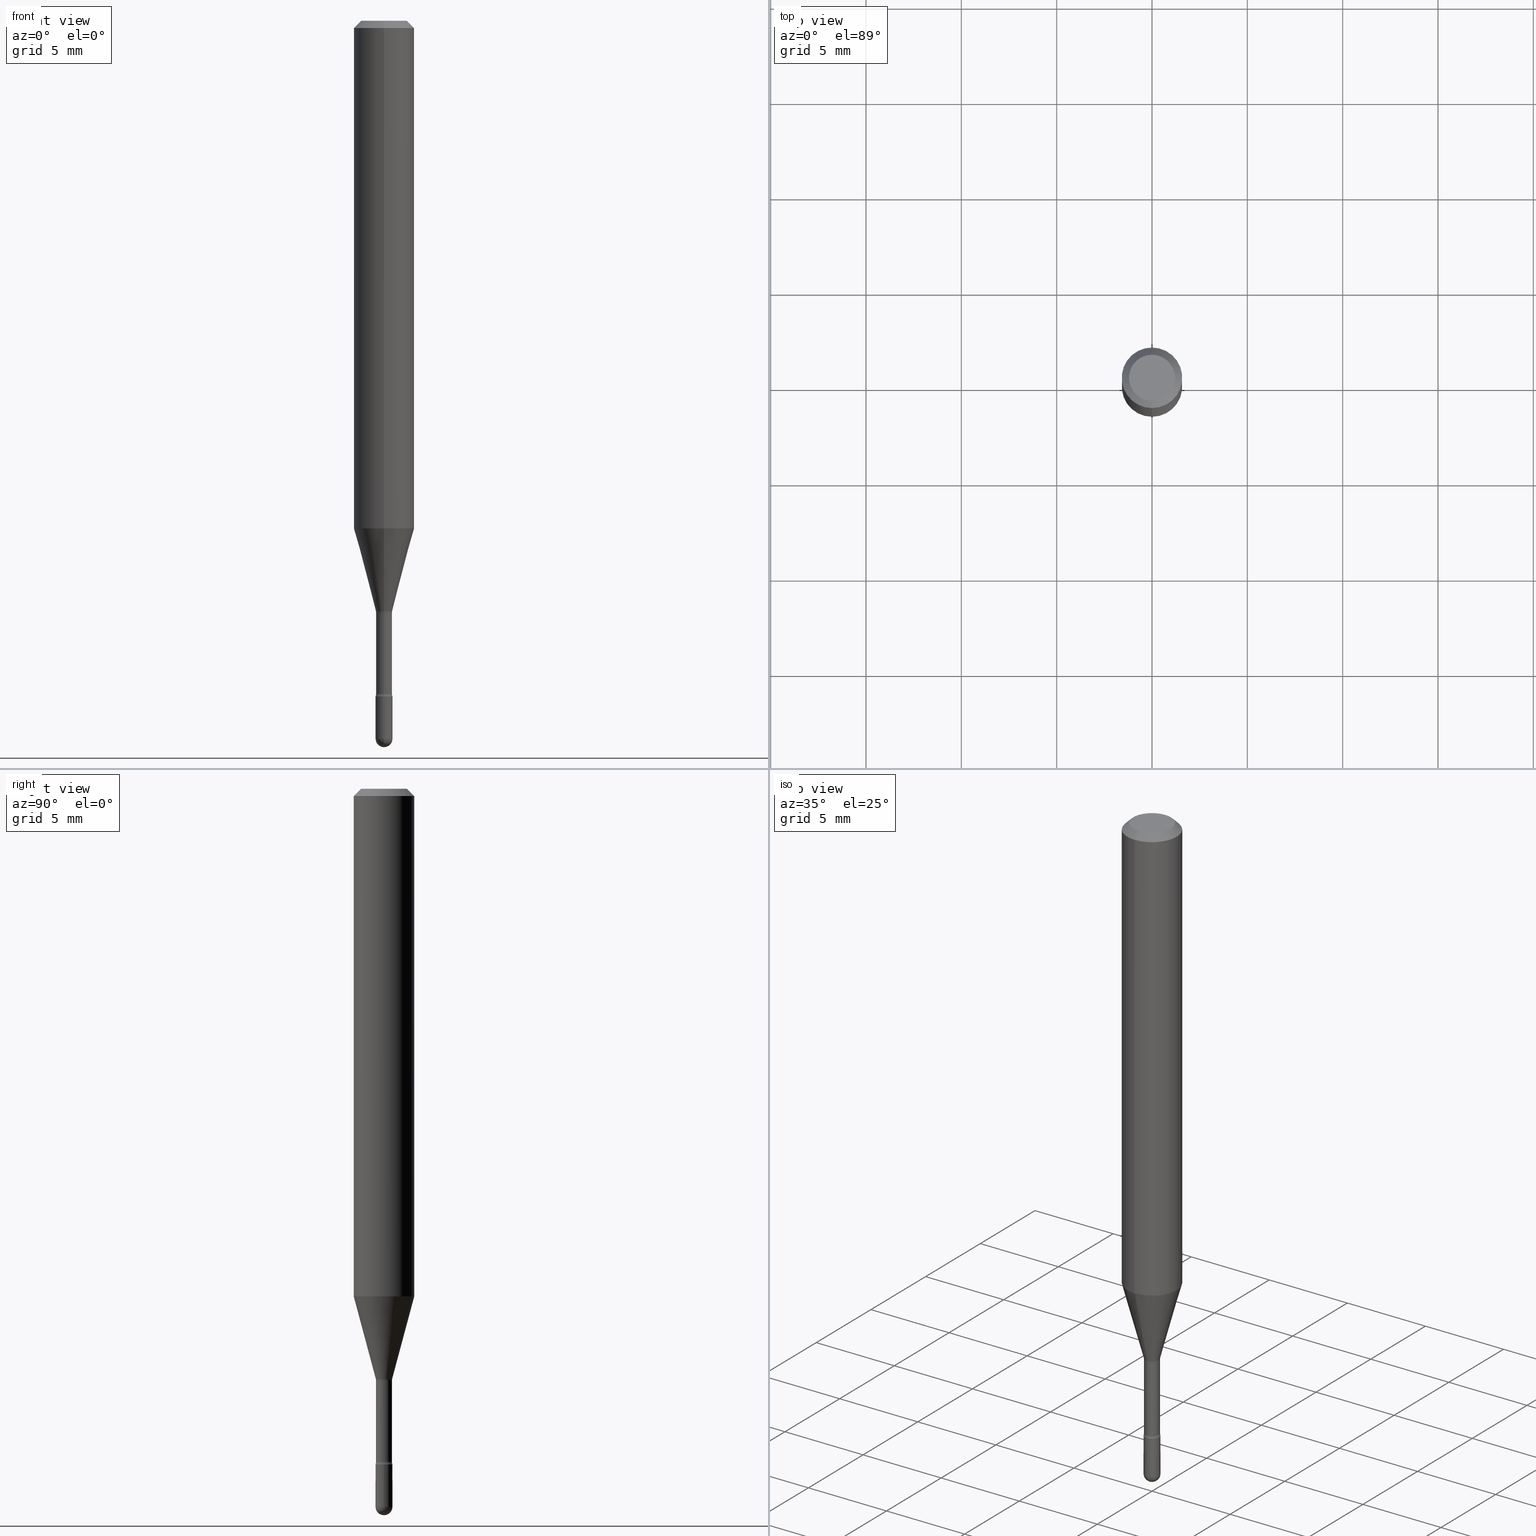
[diagram: canonical four-view strip — front | top / right | iso, engineering-drawing reading convention]
A machine part, canonical four-view strip (front | top / right | iso — engineering-drawing reading convention). The complete STEP part file that produces these views, byte-faithful:
ISO-10303-21;
HEADER;
FILE_DESCRIPTION (( 'STEP AP203' ),
    '1' );
FILE_NAME ('03757.STEP',
    '2024-04-09T20:21:34',
    ( '' ),
    ( '' ),
    'SwSTEP 2.0',
    'SolidWorks 2023',
    '' );
FILE_SCHEMA (( 'CONFIG_CONTROL_DESIGN' ));
ENDSEC;

DATA;
#1 = ORIENTED_EDGE ( 'NONE', *, *, #41, .T. ) ;
#2 = APPLICATION_CONTEXT ( 'configuration controlled 3d designs of mechanical parts and assemblies' ) ;
#3 = ORIENTED_EDGE ( 'NONE', *, *, #524, .F. ) ;
#4 = ORIENTED_EDGE ( 'NONE', *, *, #390, .T. ) ;
#5 = VERTEX_POINT ( 'NONE', #275 ) ;
#6 = DIRECTION ( 'NONE',  ( -6.982962677686265922E-15, -1.000000000000000000, 3.491500473345853689E-15 ) ) ;
#7 = TOROIDAL_SURFACE ( 'NONE', #496, 0.03145000000000001267, 0.01499999999999995261 ) ;
#8 = ORIENTED_EDGE ( 'NONE', *, *, #70, .T. ) ;
#9 = ORIENTED_EDGE ( 'NONE', *, *, #205, .F. ) ;
#10 = DIRECTION ( 'NONE',  ( -2.438088387897960049E-29, 3.491481338843145188E-15, 1.000000000000000000 ) ) ;
#11 = CARTESIAN_POINT ( 'NONE',  ( 2.563177371771484502E-29, -3.659578025209718433E-15, -1.048139060311453319 ) ) ;
#12 = VERTEX_POINT ( 'NONE', #246 ) ;
#13 = ORIENTED_EDGE ( 'NONE', *, *, #536, .F. ) ;
#14 = APPROVAL_STATUS ( 'not_yet_approved' ) ;
#15 = CLOSED_SHELL ( 'NONE', ( #419, #177, #558, #69, #85 ) ) ;
#16 = CARTESIAN_POINT ( 'NONE',  ( -2.196141762132031595E-16, -0.03145000000000426621, -1.221974787463810941 ) ) ;
#17 = CC_DESIGN_SECURITY_CLASSIFICATION ( #193, ( #79 ) ) ;
#18 = EDGE_LOOP ( 'NONE', ( #395, #197 ) ) ;
#19 = COORDINATED_UNIVERSAL_TIME_OFFSET ( 5, 0, .BEHIND. ) ;
#20 = FACE_OUTER_BOUND ( 'NONE', #141, .T. ) ;
#21 = ORIENTED_EDGE ( 'NONE', *, *, #38, .T. ) ;
#22 = CARTESIAN_POINT ( 'NONE',  ( 3.625407505169465251E-29, -5.176121084834963974E-15, -1.482500000000000151 ) ) ;
#23 = DIRECTION ( 'NONE',  ( 1.839019923739595977E-15, 0.2588190451025243477, 0.9659258262890673130 ) ) ;
#24 = CC_DESIGN_PERSON_AND_ORGANIZATION_ASSIGNMENT ( #198, #321, ( #79 ) ) ;
#25 = AXIS2_PLACEMENT_3D ( 'NONE', #16, #330, #540 ) ;
#26 = DIRECTION ( 'NONE',  ( -2.445455444633309356E-29, 3.491500473345854084E-15, 1.000000000000000000 ) ) ;
#27 =( GEOMETRIC_REPRESENTATION_CONTEXT ( 3 ) GLOBAL_UNCERTAINTY_ASSIGNED_CONTEXT ( ( #440 ) ) GLOBAL_UNIT_ASSIGNED_CONTEXT ( ( #460, #235, #157 ) ) REPRESENTATION_CONTEXT ( 'NONE', 'WORKASPACE' ) );
#28 = PERSON_AND_ORGANIZATION_ROLE ( 'design_supplier' ) ;
#29 = CARTESIAN_POINT ( 'NONE',  ( 3.316907271900976096E-16, 0.04749999999999999362, 3.181736537036162079E-17 ) ) ;
#30 = DIRECTION ( 'NONE',  ( 4.937700262164548042E-15, 0.7071067811865451302, -0.7071067811865499042 ) ) ;
#31 = DIRECTION ( 'NONE',  ( -1.807323732225325801E-15, -0.2588190451025175753, 0.9659258262890690894 ) ) ;
#32 = CARTESIAN_POINT ( 'NONE',  ( -0.01750000000000000167, -4.899023797502559247E-15, -1.395000000000000018 ) ) ;
#33 = PRODUCT_RELATED_PRODUCT_CATEGORY ( 'detail', '', ( #80 ) ) ;
#34 = CARTESIAN_POINT ( 'NONE',  ( 3.411410345263466685E-29, -4.870643160317466837E-15, -1.395000000000000018 ) ) ;
#35 = CARTESIAN_POINT ( 'NONE',  ( 3.668183166949984529E-31, -5.237250710018810412E-17, -0.01500000000000008271 ) ) ;
#36 = AXIS2_PLACEMENT_3D ( 'NONE', #322, #461, #194 ) ;
#37 = CARTESIAN_POINT ( 'NONE',  ( 2.823025816868771357E-16, 0.01696111260565972764, -1.218092501787273241 ) ) ;
#38 = EDGE_CURVE ( 'NONE', #455, #156, #281, .T. ) ;
#39 = LINE ( 'NONE', #515, #350 ) ;
#40 = ORIENTED_EDGE ( 'NONE', *, *, #412, .F. ) ;
#41 = EDGE_CURVE ( 'NONE', #50, #443, #234, .T. ) ;
#42 = CIRCLE ( 'NONE', #25, 0.01499999999999999424 ) ;
#43 = APPROVAL_PERSON_ORGANIZATION ( #279, #216, #240 ) ;
#44 = VERTEX_POINT ( 'NONE', #159 ) ;
#45 = AXIS2_PLACEMENT_3D ( 'NONE', #134, #315, #48 ) ;
#46 = CYLINDRICAL_SURFACE ( 'NONE', #227, 0.06250000000000000000 ) ;
#47 = ORIENTED_EDGE ( 'NONE', *, *, #128, .T. ) ;
#48 = DIRECTION ( 'NONE',  ( -6.982962677686266711E-15, -1.000000000000000000, 0.000000000000000000 ) ) ;
#49 = ORIENTED_EDGE ( 'NONE', *, *, #274, .T. ) ;
#50 = VERTEX_POINT ( 'NONE', #289 ) ;
#51 = FACE_OUTER_BOUND ( 'NONE', #147, .T. ) ;
#52 = VECTOR ( 'NONE', #23, 39.37007874015748143 ) ;
#53 = AXIS2_PLACEMENT_3D ( 'NONE', #503, #301, #167 ) ;
#54 = EDGE_CURVE ( 'NONE', #156, #499, #299, .T. ) ;
#55 = EDGE_LOOP ( 'NONE', ( #384, #410, #176, #238 ) ) ;
#56 = FACE_OUTER_BOUND ( 'NONE', #346, .T. ) ;
#57 = DIRECTION ( 'NONE',  ( -6.982962677686265922E-15, -1.000000000000000000, 0.000000000000000000 ) ) ;
#58 = EDGE_CURVE ( 'NONE', #497, #519, #454, .T. ) ;
#59 = CARTESIAN_POINT ( 'NONE',  ( 1.205159535236658201E-16, 0.01696111260565972417, -1.218092501787273241 ) ) ;
#60 = DATE_AND_TIME ( #449, #433 ) ;
#61 = DIRECTION ( 'NONE',  ( -6.982962677686266711E-15, -1.000000000000000000, 3.491500473345853689E-15 ) ) ;
#62 = VERTEX_POINT ( 'NONE', #509 ) ;
#63 = APPROVAL_STATUS ( 'not_yet_approved' ) ;
#64 = CONICAL_SURFACE ( 'NONE', #88, 0.06250000000000000000, 0.7853981633974483900 ) ;
#65 = CARTESIAN_POINT ( 'NONE',  ( -1.184388162973558367E-16, -0.01696111260566823126, -1.218092501787273241 ) ) ;
#66 = AXIS2_PLACEMENT_3D ( 'NONE', #97, #348, #142 ) ;
#67 = ORIENTED_EDGE ( 'NONE', *, *, #308, .F. ) ;
#68 = EDGE_CURVE ( 'NONE', #156, #306, #359, .T. ) ;
#69 = ADVANCED_FACE ( 'NONE', ( #76 ), #462, .T. ) ;
#70 = EDGE_CURVE ( 'NONE', #499, #182, #213, .T. ) ;
#71 = CALENDAR_DATE ( 2024, 9, 4 ) ;
#72 = CARTESIAN_POINT ( 'NONE',  ( 4.440892098500880569E-16, 0.06249999999999632933, -1.048139060311453763 ) ) ;
#73 = ORIENTED_EDGE ( 'NONE', *, *, #420, .T. ) ;
#74 = LENGTH_MEASURE_WITH_UNIT ( LENGTH_MEASURE( 0.02539999999999999897 ), #482 );
#75 = DIRECTION ( 'NONE',  ( -6.982962677686266711E-15, -1.000000000000000000, 0.000000000000000000 ) ) ;
#76 = FACE_OUTER_BOUND ( 'NONE', #545, .T. ) ;
#77 = PERSON_AND_ORGANIZATION ( #525, #423 ) ;
#78 = DIRECTION ( 'NONE',  ( 7.105427357600997914E-15, 1.000000000000000000, 0.000000000000000000 ) ) ;
#79 = PRODUCT_DEFINITION_FORMATION_WITH_SPECIFIED_SOURCE ( 'ANY', '', #80, .NOT_KNOWN. ) ;
#80 = PRODUCT ( '03757', '03757', '', ( #332 ) ) ;
#81 = CARTESIAN_POINT ( 'NONE',  ( -1.184388162973558367E-16, -0.01696111260566823126, -1.218092501787273241 ) ) ;
#82 = DIRECTION ( 'NONE',  ( -1.000000000000000000, 7.105427357601001070E-15, -4.926315508542082329E-29 ) ) ;
#83 = CARTESIAN_POINT ( 'NONE',  ( -4.287811248607203282E-16, -0.06250000000000005551, -0.01499999999999986587 ) ) ;
#84 = CARTESIAN_POINT ( 'NONE',  ( 2.023455696568545272E-45, -2.889172759565612818E-31, -8.274612318266673942E-17 ) ) ;
#85 = ADVANCED_FACE ( 'NONE', ( #123 ), #334, .T. ) ;
#86 = ADVANCED_FACE ( 'NONE', ( #501 ), #253, .F. ) ;
#87 = CARTESIAN_POINT ( 'NONE',  ( 3.668951479780737210E-29, -5.236150442315465727E-15, -1.500000000000000222 ) ) ;
#88 = AXIS2_PLACEMENT_3D ( 'NONE', #151, #233, #325 ) ;
#89 = DIRECTION ( 'NONE',  ( -2.445455444633309637E-29, 3.491500473345854084E-15, 1.000000000000000000 ) ) ;
#90 = ORIENTED_EDGE ( 'NONE', *, *, #536, .T. ) ;
#91 = FACE_OUTER_BOUND ( 'NONE', #397, .T. ) ;
#92 = EDGE_CURVE ( 'NONE', #429, #44, #272, .T. ) ;
#93 = AXIS2_PLACEMENT_3D ( 'NONE', #421, #215, #428 ) ;
#94 = VECTOR ( 'NONE', #475, 39.37007874015748143 ) ;
#95 = CC_DESIGN_PERSON_AND_ORGANIZATION_ASSIGNMENT ( #201, #413, ( #80 ) ) ;
#96 = VERTEX_POINT ( 'NONE', #342 ) ;
#97 = CARTESIAN_POINT ( 'NONE',  ( 3.625407505169465251E-29, -5.176121084834963974E-15, -1.482500000000000151 ) ) ;
#98 = CIRCLE ( 'NONE', #191, 0.01696111260566397771 ) ;
#99 = EDGE_CURVE ( 'NONE', #12, #447, #556, .T. ) ;
#100 = ORIENTED_EDGE ( 'NONE', *, *, #412, .T. ) ;
#101 = SECURITY_CLASSIFICATION_LEVEL ( 'unclassified' ) ;
#102 = ORIENTED_EDGE ( 'NONE', *, *, #99, .T. ) ;
#103 = DATE_TIME_ROLE ( 'classification_date' ) ;
#104 = EDGE_CURVE ( 'NONE', #519, #497, #307, .T. ) ;
#105 = EDGE_LOOP ( 'NONE', ( #368, #228, #184, #521, #100 ) ) ;
#106 = COORDINATED_UNIVERSAL_TIME_OFFSET ( 5, 0, .BEHIND. ) ;
#107 = AXIS2_PLACEMENT_3D ( 'NONE', #210, #258, #431 ) ;
#108 = FACE_OUTER_BOUND ( 'NONE', #364, .T. ) ;
#109 = VECTOR ( 'NONE', #31, 39.37007874015748854 ) ;
#110 = ORIENTED_EDGE ( 'NONE', *, *, #269, .T. ) ;
#111 = APPLICATION_PROTOCOL_DEFINITION ( 'international standard', 'config_control_design', 1994, #377 ) ;
#112 = DIRECTION ( 'NONE',  ( -2.445455444633309637E-29, 3.491500473345854084E-15, 1.000000000000000000 ) ) ;
#113 = CARTESIAN_POINT ( 'NONE',  ( 2.023455696568545272E-45, -2.889172759565612818E-31, -8.274612318266673942E-17 ) ) ;
#114 = APPROVAL_STATUS ( 'not_yet_approved' ) ;
#115 = DIRECTION ( 'NONE',  ( -6.982962677686261977E-15, -1.000000000000000000, 0.000000000000000000 ) ) ;
#116 = DIRECTION ( 'NONE',  ( -6.982962677686266711E-15, -1.000000000000000000, 3.491500473345854478E-15 ) ) ;
#117 = CARTESIAN_POINT ( 'NONE',  ( 0.01749999999999999820, -5.145570623120085689E-15, -1.482500000000000151 ) ) ;
#118 = EDGE_CURVE ( 'NONE', #519, #499, #425, .T. ) ;
#119 = TOROIDAL_SURFACE ( 'NONE', #36, 0.03144999999999999879, 0.01499999999999998904 ) ;
#120 = DIRECTION ( 'NONE',  ( -2.445468806185136597E-29, 3.491481338843145583E-15, 1.000000000000000000 ) ) ;
#121 = APPROVAL ( #114, 'UNSPECIFIED' ) ;
#122 = DIRECTION ( 'NONE',  ( -2.445455444633309637E-29, 3.491500473345854084E-15, 1.000000000000000000 ) ) ;
#123 = FACE_OUTER_BOUND ( 'NONE', #352, .T. ) ;
#124 = DIRECTION ( 'NONE',  ( -2.445468806185136597E-29, 3.491481338843145583E-15, 1.000000000000000000 ) ) ;
#125 = CARTESIAN_POINT ( 'NONE',  ( 3.625407505169465251E-29, -5.176121084834963974E-15, -1.482500000000000151 ) ) ;
#126 = EDGE_CURVE ( 'NONE', #443, #62, #163, .T. ) ;
#127 = FACE_OUTER_BOUND ( 'NONE', #105, .T. ) ;
#128 = EDGE_CURVE ( 'NONE', #326, #12, #532, .T. ) ;
#129 = AXIS2_PLACEMENT_3D ( 'NONE', #84, #292, #204 ) ;
#130 = AXIS2_PLACEMENT_3D ( 'NONE', #339, #379, #550 ) ;
#131 = DIRECTION ( 'NONE',  ( -2.445468806185136597E-29, 3.491481338843145583E-15, 1.000000000000000000 ) ) ;
#132 = ORIENTED_EDGE ( 'NONE', *, *, #128, .F. ) ;
#133 = ORIENTED_EDGE ( 'NONE', *, *, #453, .F. ) ;
#134 = CARTESIAN_POINT ( 'NONE',  ( 3.397927588859361801E-29, -4.851393146799434675E-15, -1.389486607215153491 ) ) ;
#135 = AXIS2_PLACEMENT_3D ( 'NONE', #285, #202, #458 ) ;
#136 = LOCAL_TIME ( 16, 21, 34.00000000000000000, #328 ) ;
#137 = ORIENTED_EDGE ( 'NONE', *, *, #367, .T. ) ;
#138 = CARTESIAN_POINT ( 'NONE',  ( -1.169113584055446105E-44, 1.669184350826100908E-30, 4.780733988912460139E-16 ) ) ;
#139 = ORIENTED_EDGE ( 'NONE', *, *, #367, .F. ) ;
#140 = DIRECTION ( 'NONE',  ( -6.982962677686265922E-15, -1.000000000000000000, 3.491500473345853689E-15 ) ) ;
#141 = EDGE_LOOP ( 'NONE', ( #139, #320, #490, #271 ) ) ;
#142 = DIRECTION ( 'NONE',  ( 6.982962677686265922E-15, 1.000000000000000000, 0.000000000000000000 ) ) ;
#143 = VERTEX_POINT ( 'NONE', #32 ) ;
#144 = AXIS2_PLACEMENT_3D ( 'NONE', #549, #380, #382 ) ;
#145 = CIRCLE ( 'NONE', #546, 0.01499999999999995608 ) ;
#146 = CARTESIAN_POINT ( 'NONE',  ( -1.222018468594753717E-16, -0.01750000000000484848, -1.395000000000000018 ) ) ;
#147 = EDGE_LOOP ( 'NONE', ( #222, #355 ) ) ;
#148 = FACE_OUTER_BOUND ( 'NONE', #516, .T. ) ;
#149 = ORIENTED_EDGE ( 'NONE', *, *, #553, .F. ) ;
#150 = DATE_AND_TIME ( #362, #136 ) ;
#151 = CARTESIAN_POINT ( 'NONE',  ( 3.668183166949984529E-31, -5.237250710018810412E-17, -0.01500000000000008271 ) ) ;
#152 = ORIENTED_EDGE ( 'NONE', *, *, #99, .F. ) ;
#153 = COORDINATED_UNIVERSAL_TIME_OFFSET ( 5, 0, .BEHIND. ) ;
#154 = AXIS2_PLACEMENT_3D ( 'NONE', #498, #112, #75 ) ;
#155 = CARTESIAN_POINT ( 'NONE',  ( -4.364351673553912750E-16, -0.06250000000000005551, -0.01499999999999986587 ) ) ;
#156 = VERTEX_POINT ( 'NONE', #72 ) ;
#157 =( NAMED_UNIT ( * ) SI_UNIT ( $, .STERADIAN. ) SOLID_ANGLE_UNIT ( ) );
#158 = DIRECTION ( 'NONE',  ( -1.000000000000000000, 6.982962677686265922E-15, -4.883557194083112340E-29 ) ) ;
#159 = CARTESIAN_POINT ( 'NONE',  ( -0.01749999999999999820, -4.899023797502559247E-15, -1.482500000000000151 ) ) ;
#160 = LINE ( 'NONE', #81, #109 ) ;
#161 = DIRECTION ( 'NONE',  ( -2.445455444633309637E-29, 3.491500473345854084E-15, 1.000000000000000000 ) ) ;
#162 = FACE_OUTER_BOUND ( 'NONE', #243, .T. ) ;
#163 = CIRCLE ( 'NONE', #564, 0.01644999999999999934 ) ;
#164 = VECTOR ( 'NONE', #341, 39.37007874015748143 ) ;
#165 = DIRECTION ( 'NONE',  ( -6.982962677686266711E-15, -1.000000000000000000, 0.000000000000000000 ) ) ;
#166 = SHAPE_DEFINITION_REPRESENTATION ( #552, #175 ) ;
#167 = DIRECTION ( 'NONE',  ( 1.000000000000000000, -6.982962677686265922E-15, 4.876176775795936353E-29 ) ) ;
#168 = ADVANCED_FACE ( 'NONE', ( #548 ), #7, .F. ) ;
#169 = EDGE_CURVE ( 'NONE', #224, #455, #98, .T. ) ;
#170 = DIRECTION ( 'NONE',  ( 1.000000000000000000, -6.982962677686250144E-15, 0.000000000000000000 ) ) ;
#171 = DIRECTION ( 'NONE',  ( 1.000000000000000000, -6.982962677686250144E-15, 0.000000000000000000 ) ) ;
#172 = CARTESIAN_POINT ( 'NONE',  ( -1.169113584055446105E-44, 1.669184350826100908E-30, 4.780733988912460139E-16 ) ) ;
#173 = AXIS2_PLACEMENT_3D ( 'NONE', #280, #242, #418 ) ;
#174 = LOCAL_TIME ( 16, 21, 34.00000000000000000, #539 ) ;
#175 = ADVANCED_BREP_SHAPE_REPRESENTATION ( '03757', ( #562, #192, #484 ), #27 ) ;
#176 = ORIENTED_EDGE ( 'NONE', *, *, #488, .T. ) ;
#177 = ADVANCED_FACE ( 'NONE', ( #148 ), #277, .T. ) ;
#178 = CYLINDRICAL_SURFACE ( 'NONE', #262, 0.06250000000000000000 ) ;
#179 = DIRECTION ( 'NONE',  ( -6.982962677686266711E-15, -1.000000000000000000, 0.000000000000000000 ) ) ;
#180 = AXIS2_PLACEMENT_3D ( 'NONE', #469, #82, #256 ) ;
#181 = LOCAL_TIME ( 16, 21, 34.00000000000000000, #19 ) ;
#182 = VERTEX_POINT ( 'NONE', #155 ) ;
#183 = DIRECTION ( 'NONE',  ( -2.445455444633309637E-29, 3.491500473345854084E-15, 1.000000000000000000 ) ) ;
#184 = ORIENTED_EDGE ( 'NONE', *, *, #186, .F. ) ;
#185 = DIRECTION ( 'NONE',  ( -2.445455444633309637E-29, 3.491500473345854084E-15, 1.000000000000000000 ) ) ;
#186 = EDGE_CURVE ( 'NONE', #96, #143, #294, .T. ) ;
#187 = ORIENTED_EDGE ( 'NONE', *, *, #54, .T. ) ;
#188 = DIRECTION ( 'NONE',  ( -2.445455444633309637E-29, 3.491500473345854084E-15, 1.000000000000000000 ) ) ;
#189 = ORIENTED_EDGE ( 'NONE', *, *, #479, .F. ) ;
#190 = ORIENTED_EDGE ( 'NONE', *, *, #518, .F. ) ;
#191 = AXIS2_PLACEMENT_3D ( 'NONE', #416, #450, #487 ) ;
#192 = MANIFOLD_SOLID_BREP ( 'Body-Move/Copy2[2]', #302 ) ;
#193 = SECURITY_CLASSIFICATION ( '', '', #101 ) ;
#194 = DIRECTION ( 'NONE',  ( -6.982962677686265133E-15, -1.000000000000000000, 3.491500473345853689E-15 ) ) ;
#195 = ORIENTED_EDGE ( 'NONE', *, *, #388, .T. ) ;
#196 = CARTESIAN_POINT ( 'NONE',  ( 3.397946154556677144E-29, -4.851366559664184684E-15, -1.389486607215153491 ) ) ;
#197 = ORIENTED_EDGE ( 'NONE', *, *, #390, .F. ) ;
#198 = PERSON_AND_ORGANIZATION ( #525, #423 ) ;
#199 = ADVANCED_FACE ( 'NONE', ( #20 ), #119, .F. ) ;
#200 = ORIENTED_EDGE ( 'NONE', *, *, #441, .T. ) ;
#201 = PERSON_AND_ORGANIZATION ( #525, #423 ) ;
#202 = DIRECTION ( 'NONE',  ( 2.445455444633309637E-29, -3.491500473345854084E-15, -1.000000000000000000 ) ) ;
#203 = CIRCLE ( 'NONE', #351, 0.01645000000000006180 ) ;
#204 = DIRECTION ( 'NONE',  ( -6.982962677686266711E-15, -1.000000000000000000, 3.491500473345854478E-15 ) ) ;
#205 = EDGE_CURVE ( 'NONE', #224, #62, #42, .T. ) ;
#206 = LINE ( 'NONE', #83, #164 ) ;
#207 = ADVANCED_FACE ( 'NONE', ( #363 ), #64, .T. ) ;
#208 = CARTESIAN_POINT ( 'NONE',  ( 2.988284897208007501E-29, -4.266525548846594975E-15, -1.221974787463810941 ) ) ;
#209 = FACE_OUTER_BOUND ( 'NONE', #526, .T. ) ;
#210 = CARTESIAN_POINT ( 'NONE',  ( 3.625407505169465251E-29, -5.176121084834963974E-15, -1.482500000000000151 ) ) ;
#211 = ADVANCED_FACE ( 'NONE', ( #537 ), #466, .T. ) ;
#212 = CARTESIAN_POINT ( 'NONE',  ( 2.234656903965813287E-16, 0.03144999999999573137, -1.221974787463811163 ) ) ;
#213 = CIRCLE ( 'NONE', #445, 0.06250000000000000000 ) ;
#214 = CC_DESIGN_APPROVAL ( #121, ( #79 ) ) ;
#215 = DIRECTION ( 'NONE',  ( -2.445455444633309637E-29, 3.491500473345854084E-15, 1.000000000000000000 ) ) ;
#216 = APPROVAL ( #63, 'UNSPECIFIED' ) ;
#217 = PLANE ( 'NONE',  #317 ) ;
#218 = CARTESIAN_POINT ( 'NONE',  ( 1.222018468595459501E-16, 0.01749999999999482872, -1.482500000000000151 ) ) ;
#219 = EDGE_CURVE ( 'NONE', #44, #143, #248, .T. ) ;
#220 = EDGE_LOOP ( 'NONE', ( #394, #231, #448, #478 ) ) ;
#221 = AXIS2_PLACEMENT_3D ( 'NONE', #196, #495, #404 ) ;
#222 = ORIENTED_EDGE ( 'NONE', *, *, #186, .T. ) ;
#223 = AXIS2_PLACEMENT_3D ( 'NONE', #464, #435, #171 ) ;
#224 = VERTEX_POINT ( 'NONE', #65 ) ;
#225 = DIRECTION ( 'NONE',  ( -2.445455444633309637E-29, 3.491500473345854084E-15, 1.000000000000000000 ) ) ;
#226 = AXIS2_PLACEMENT_3D ( 'NONE', #371, #366, #543 ) ;
#227 = AXIS2_PLACEMENT_3D ( 'NONE', #442, #225, #140 ) ;
#228 = ORIENTED_EDGE ( 'NONE', *, *, #219, .T. ) ;
#229 = ADVANCED_FACE ( 'NONE', ( #492 ), #422, .F. ) ;
#230 = CARTESIAN_POINT ( 'NONE',  ( 3.411428984628265351E-29, -4.870616467686188228E-15, -1.395000000000000018 ) ) ;
#231 = ORIENTED_EDGE ( 'NONE', *, *, #68, .T. ) ;
#232 = CARTESIAN_POINT ( 'NONE',  ( 2.978790940562696599E-29, -4.252970546569299993E-15, -1.218092501787273241 ) ) ;
#233 = DIRECTION ( 'NONE',  ( 2.445455444633309637E-29, -3.491500473345854084E-15, -1.000000000000000000 ) ) ;
#234 = LINE ( 'NONE', #336, #373 ) ;
#235 =( NAMED_UNIT ( * ) PLANE_ANGLE_UNIT ( ) SI_UNIT ( $, .RADIAN. ) );
#236 = DIRECTION ( 'NONE',  ( -1.000000000000000000, 6.982962677686265922E-15, -4.883557194083112340E-29 ) ) ;
#237 = CC_DESIGN_DATE_AND_TIME_ASSIGNMENT ( #60, #103, ( #193 ) ) ;
#238 = ORIENTED_EDGE ( 'NONE', *, *, #68, .F. ) ;
#239 = AXIS2_PLACEMENT_3D ( 'NONE', #551, #504, #170 ) ;
#240 = APPROVAL_ROLE ( '' ) ;
#241 = AXIS2_PLACEMENT_3D ( 'NONE', #212, #386, #78 ) ;
#242 = DIRECTION ( 'NONE',  ( -2.445455444633309637E-29, 3.491500473345854084E-15, 1.000000000000000000 ) ) ;
#243 = EDGE_LOOP ( 'NONE', ( #90, #1, #189, #133 ) ) ;
#244 = APPROVAL_DATE_TIME ( #283, #216 ) ;
#245 = DIRECTION ( 'NONE',  ( -2.445455444633309637E-29, 3.491500473345854084E-15, 1.000000000000000000 ) ) ;
#246 = CARTESIAN_POINT ( 'NONE',  ( -1.243449787579813061E-16, -0.01750000000000517808, -1.482500000000000151 ) ) ;
#247 = DIRECTION ( 'NONE',  ( 0.000000000000000000, 0.000000000000000000, 1.000000000000000000 ) ) ;
#248 = LINE ( 'NONE', #291, #327 ) ;
#249 = DIRECTION ( 'NONE',  ( -2.445455444633309637E-29, 3.491500473345854084E-15, 1.000000000000000000 ) ) ;
#250 = PERSON_AND_ORGANIZATION ( #525, #423 ) ;
#251 = CARTESIAN_POINT ( 'NONE',  ( 1.168842800325705942E-16, 0.01644999999999573539, -1.221974787463810941 ) ) ;
#252 = AXIS2_PLACEMENT_3D ( 'NONE', #398, #183, #353 ) ;
#253 = PLANE ( 'NONE',  #513 ) ;
#254 = DIRECTION ( 'NONE',  ( -6.982962677686266711E-15, -1.000000000000000000, 3.491500473345854873E-15 ) ) ;
#255 = ADVANCED_FACE ( 'NONE', ( #414 ), #483, .F. ) ;
#256 = DIRECTION ( 'NONE',  ( -7.105427357601001859E-15, -1.000000000000000000, 0.000000000000000000 ) ) ;
#257 = DIRECTION ( 'NONE',  ( -6.982962677686265922E-15, -1.000000000000000000, 0.000000000000000000 ) ) ;
#258 = DIRECTION ( 'NONE',  ( -1.000000000000000000, 6.982962677686265922E-15, -4.883557194083112340E-29 ) ) ;
#259 = CC_DESIGN_PERSON_AND_ORGANIZATION_ASSIGNMENT ( #276, #357, ( #193 ) ) ;
#260 = FACE_OUTER_BOUND ( 'NONE', #436, .T. ) ;
#261 = AXIS2_PLACEMENT_3D ( 'NONE', #22, #236, #408 ) ;
#262 = AXIS2_PLACEMENT_3D ( 'NONE', #138, #185, #6 ) ;
#263 = DIRECTION ( 'NONE',  ( -2.445455444633309637E-29, 3.491500473345854084E-15, 1.000000000000000000 ) ) ;
#264 = ADVANCED_FACE ( 'NONE', ( #108 ), #383, .T. ) ;
#265 = ORIENTED_EDGE ( 'NONE', *, *, #118, .T. ) ;
#266 = DIRECTION ( 'NONE',  ( -2.445455444633309637E-29, 3.491500473345854084E-15, 1.000000000000000000 ) ) ;
#267 = AXIS2_PLACEMENT_3D ( 'NONE', #333, #500, #57 ) ;
#268 = CONICAL_SURFACE ( 'NONE', #303, 0.01696111260566397771, 0.2617993877991496299 ) ;
#269 = EDGE_CURVE ( 'NONE', #5, #305, #437, .T. ) ;
#270 = CARTESIAN_POINT ( 'NONE',  ( 3.397927588859361801E-29, -4.851393146799434675E-15, -1.389486607215153491 ) ) ;
#271 = ORIENTED_EDGE ( 'NONE', *, *, #479, .T. ) ;
#272 = CIRCLE ( 'NONE', #239, 0.01749999999999999820 ) ;
#273 = CIRCLE ( 'NONE', #309, 0.06250000000000000000 ) ;
#274 = EDGE_CURVE ( 'NONE', #305, #530, #505, .T. ) ;
#275 = CARTESIAN_POINT ( 'NONE',  ( -1.148697360479055251E-16, -0.01645000000000491208, -1.389486607215153491 ) ) ;
#276 = PERSON_AND_ORGANIZATION ( #525, #423 ) ;
#277 = SPHERICAL_SURFACE ( 'NONE', #261, 0.01750000000000000860 ) ;
#278 = ORIENTED_EDGE ( 'NONE', *, *, #472, .T. ) ;
#279 = PERSON_AND_ORGANIZATION ( #525, #423 ) ;
#280 = CARTESIAN_POINT ( 'NONE',  ( 2.988301224687461483E-29, -4.266502166966715248E-15, -1.221974787463810941 ) ) ;
#281 = LINE ( 'NONE', #59, #52 ) ;
#282 = AXIS2_PLACEMENT_3D ( 'NONE', #11, #188, #358 ) ;
#283 = DATE_AND_TIME ( #71, #181 ) ;
#284 = CIRCLE ( 'NONE', #241, 0.01499999999999999424 ) ;
#285 = CARTESIAN_POINT ( 'NONE',  ( 3.668183166949984529E-31, -5.237250710018810412E-17, -0.01500000000000008271 ) ) ;
#286 = ORIENTED_EDGE ( 'NONE', *, *, #287, .F. ) ;
#287 = EDGE_CURVE ( 'NONE', #306, #156, #522, .T. ) ;
#288 = DIRECTION ( 'NONE',  ( -2.445468806185136877E-29, 3.491481338843145188E-15, 1.000000000000000000 ) ) ;
#289 = CARTESIAN_POINT ( 'NONE',  ( 1.206146293953111284E-16, 0.01644999999999521151, -1.389486607215153491 ) ) ;
#290 = CALENDAR_DATE ( 2024, 9, 4 ) ;
#291 = CARTESIAN_POINT ( 'NONE',  ( -0.01750000000000000167, 1.243449787580175444E-16, -8.608136407946085539E-31 ) ) ;
#292 = DIRECTION ( 'NONE',  ( -2.445455444633309637E-29, 3.491500473345854084E-15, 1.000000000000000000 ) ) ;
#293 = AXIS2_PLACEMENT_3D ( 'NONE', #376, #158, #115 ) ;
#294 = CIRCLE ( 'NONE', #226, 0.01750000000000000167 ) ;
#295 = CARTESIAN_POINT ( 'NONE',  ( 0.01750000000000000167, -1.222018468595096625E-16, 8.533309357642889039E-31 ) ) ;
#296 = CIRCLE ( 'NONE', #66, 0.01750000000000000860 ) ;
#297 = CARTESIAN_POINT ( 'NONE',  ( 4.364351673553919652E-16, 0.06249999999999995143, -0.01500000000000030129 ) ) ;
#298 = LINE ( 'NONE', #295, #94 ) ;
#299 = LINE ( 'NONE', #507, #476 ) ;
#300 = CYLINDRICAL_SURFACE ( 'NONE', #53, 0.01750000000000000167 ) ;
#301 = DIRECTION ( 'NONE',  ( -2.445468806185136597E-29, 3.491481338843145583E-15, 1.000000000000000000 ) ) ;
#302 = CLOSED_SHELL ( 'NONE', ( #229, #356, #168, #264, #517, #510, #211, #512, #207, #426, #86, #255, #541, #199 ) ) ;
#303 = AXIS2_PLACEMENT_3D ( 'NONE', #506, #122, #304 ) ;
#304 = DIRECTION ( 'NONE',  ( -6.982962677686266711E-15, -1.000000000000000000, 0.000000000000000000 ) ) ;
#305 = VERTEX_POINT ( 'NONE', #146 ) ;
#306 = VERTEX_POINT ( 'NONE', #319 ) ;
#307 = CIRCLE ( 'NONE', #338, 0.04749999999999999362 ) ;
#308 = EDGE_CURVE ( 'NONE', #306, #182, #39, .T. ) ;
#309 = AXIS2_PLACEMENT_3D ( 'NONE', #345, #563, #427 ) ;
#310 = ORIENTED_EDGE ( 'NONE', *, *, #314, .F. ) ;
#311 = EDGE_CURVE ( 'NONE', #143, #96, #544, .T. ) ;
#312 = ORIENTED_EDGE ( 'NONE', *, *, #126, .T. ) ;
#313 = ORIENTED_EDGE ( 'NONE', *, *, #453, .T. ) ;
#314 = EDGE_CURVE ( 'NONE', #44, #12, #474, .T. ) ;
#315 = DIRECTION ( 'NONE',  ( -2.445455444633309637E-29, 3.491500473345854084E-15, 1.000000000000000000 ) ) ;
#316 = ORIENTED_EDGE ( 'NONE', *, *, #104, .T. ) ;
#317 = AXIS2_PLACEMENT_3D ( 'NONE', #29, #554, #343 ) ;
#318 = CALENDAR_DATE ( 2024, 9, 4 ) ;
#319 = CARTESIAN_POINT ( 'NONE',  ( -4.364351673553661300E-16, -0.06250000000000367761, -1.048139060311453097 ) ) ;
#320 = ORIENTED_EDGE ( 'NONE', *, *, #169, .F. ) ;
#321 = PERSON_AND_ORGANIZATION_ROLE ( 'creator' ) ;
#322 = CARTESIAN_POINT ( 'NONE',  ( 2.988301224687461483E-29, -4.266502166966715248E-15, -1.221974787463810941 ) ) ;
#323 = EDGE_LOOP ( 'NONE', ( #528, #538, #265, #8 ) ) ;
#324 = DATE_AND_TIME ( #290, #174 ) ;
#325 = DIRECTION ( 'NONE',  ( 6.982962677686265922E-15, 1.000000000000000000, -3.483106191921935554E-15 ) ) ;
#326 = VERTEX_POINT ( 'NONE', #87 ) ;
#327 = VECTOR ( 'NONE', #288, 39.37007874015748143 ) ;
#328 = COORDINATED_UNIVERSAL_TIME_OFFSET ( 5, 0, .BEHIND. ) ;
#329 = AXIS2_PLACEMENT_3D ( 'NONE', #230, #10, #402 ) ;
#330 = DIRECTION ( 'NONE',  ( -1.000000000000000000, 6.982962677686265922E-15, -4.883557194083112340E-29 ) ) ;
#331 = ORIENTED_EDGE ( 'NONE', *, *, #488, .F. ) ;
#332 = MECHANICAL_CONTEXT ( 'NONE', #377, 'mechanical' ) ;
#333 = CARTESIAN_POINT ( 'NONE',  ( 3.411410345263466685E-29, -4.870643160317466837E-15, -1.395000000000000018 ) ) ;
#334 = CYLINDRICAL_SURFACE ( 'NONE', #144, 0.01750000000000000167 ) ;
#335 = CARTESIAN_POINT ( 'NONE',  ( 3.625407505169465251E-29, -5.176121084834963974E-15, -1.482500000000000151 ) ) ;
#336 = CARTESIAN_POINT ( 'NONE',  ( 1.168842800325366731E-16, 0.01645000000000003057, 4.206382161047066551E-16 ) ) ;
#337 = CC_DESIGN_DATE_AND_TIME_ASSIGNMENT ( #150, #535, ( #349 ) ) ;
#338 = AXIS2_PLACEMENT_3D ( 'NONE', #113, #555, #116 ) ;
#339 = CARTESIAN_POINT ( 'NONE',  ( 2.988284897208007501E-29, -4.266525548846594975E-15, -1.221974787463810941 ) ) ;
#340 = DIRECTION ( 'NONE',  ( 1.000000000000000000, -6.982962677686250144E-15, 0.000000000000000000 ) ) ;
#341 = DIRECTION ( 'NONE',  ( -4.851104656540964275E-15, -0.7071067811865500152, -0.7071067811865450192 ) ) ;
#342 = CARTESIAN_POINT ( 'NONE',  ( 0.01750000000000000167, -4.992818314545698211E-15, -1.395000000000000018 ) ) ;
#343 = DIRECTION ( 'NONE',  ( 6.982962677686265922E-15, 1.000000000000000000, -3.491500473345854084E-15 ) ) ;
#344 = FACE_OUTER_BOUND ( 'NONE', #220, .T. ) ;
#345 = CARTESIAN_POINT ( 'NONE',  ( 3.668183166949984529E-31, -5.237250710018810412E-17, -0.01500000000000008271 ) ) ;
#346 = EDGE_LOOP ( 'NONE', ( #403, #187, #417, #67 ) ) ;
#347 = ORIENTED_EDGE ( 'NONE', *, *, #58, .F. ) ;
#348 = DIRECTION ( 'NONE',  ( 1.000000000000000000, -6.982962677686265922E-15, 4.883557194083112340E-29 ) ) ;
#349 = PRODUCT_DEFINITION ( 'UNKNOWN', '', #79, #369 ) ;
#350 = VECTOR ( 'NONE', #89, 39.37007874015748143 ) ;
#351 = AXIS2_PLACEMENT_3D ( 'NONE', #270, #481, #179 ) ;
#352 = EDGE_LOOP ( 'NONE', ( #565, #451, #102, #195, #392 ) ) ;
#353 = DIRECTION ( 'NONE',  ( -6.982962677686266711E-15, -1.000000000000000000, 3.491500473345854873E-15 ) ) ;
#354 = ORIENTED_EDGE ( 'NONE', *, *, #169, .T. ) ;
#355 = ORIENTED_EDGE ( 'NONE', *, *, #311, .T. ) ;
#356 = ADVANCED_FACE ( 'NONE', ( #162 ), #389, .T. ) ;
#357 = PERSON_AND_ORGANIZATION_ROLE ( 'classification_officer' ) ;
#358 = DIRECTION ( 'NONE',  ( -6.982962677686265922E-15, -1.000000000000000000, 4.370956789862821150E-15 ) ) ;
#359 = CIRCLE ( 'NONE', #93, 0.06250000000000000000 ) ;
#360 = ORIENTED_EDGE ( 'NONE', *, *, #269, .F. ) ;
#361 = CC_DESIGN_APPROVAL ( #216, ( #193 ) ) ;
#362 = CALENDAR_DATE ( 2024, 9, 4 ) ;
#363 = FACE_OUTER_BOUND ( 'NONE', #323, .T. ) ;
#364 = EDGE_LOOP ( 'NONE', ( #347, #200, #278, #542 ) ) ;
#365 = APPROVAL_ROLE ( '' ) ;
#366 = DIRECTION ( 'NONE',  ( -2.445468806185136597E-29, 3.491481338843145583E-15, 1.000000000000000000 ) ) ;
#367 = EDGE_CURVE ( 'NONE', #455, #443, #284, .T. ) ;
#368 = ORIENTED_EDGE ( 'NONE', *, *, #92, .T. ) ;
#369 = DESIGN_CONTEXT ( 'detailed design', #2, 'design' ) ;
#370 = CC_DESIGN_PERSON_AND_ORGANIZATION_ASSIGNMENT ( #77, #486, ( #349 ) ) ;
#371 = CARTESIAN_POINT ( 'NONE',  ( 3.411428984628265351E-29, -4.870616467686188228E-15, -1.395000000000000018 ) ) ;
#372 = EDGE_LOOP ( 'NONE', ( #149, #137, #312, #9 ) ) ;
#373 = VECTOR ( 'NONE', #471, 39.37007874015748143 ) ;
#374 = APPROVAL_DATE_TIME ( #491, #439 ) ;
#375 = VECTOR ( 'NONE', #434, 39.37007874015748143 ) ;
#376 = CARTESIAN_POINT ( 'NONE',  ( -2.196141762131991905E-16, -0.03145000000000486989, -1.389486607215153491 ) ) ;
#377 = APPLICATION_CONTEXT ( 'configuration controlled 3d designs of mechanical parts and assemblies' ) ;
#378 = DIRECTION ( 'NONE',  ( -6.982962677686265922E-15, -1.000000000000000000, 3.483106191921935554E-15 ) ) ;
#379 = DIRECTION ( 'NONE',  ( -2.445455444633309637E-29, 3.491500473345854084E-15, 1.000000000000000000 ) ) ;
#380 = DIRECTION ( 'NONE',  ( -2.445468806185136597E-29, 3.491481338843145583E-15, 1.000000000000000000 ) ) ;
#381 = LINE ( 'NONE', #508, #375 ) ;
#382 = DIRECTION ( 'NONE',  ( 1.000000000000000000, -6.982962677686265922E-15, 4.876176775795936353E-29 ) ) ;
#383 = CONICAL_SURFACE ( 'NONE', #135, 0.06250000000000000000, 0.7853981633974483900 ) ;
#384 = ORIENTED_EDGE ( 'NONE', *, *, #38, .F. ) ;
#385 = CC_DESIGN_APPROVAL ( #439, ( #349 ) ) ;
#386 = DIRECTION ( 'NONE',  ( 1.000000000000000000, -7.105427357601001070E-15, 4.926315742872156996E-29 ) ) ;
#387 = CARTESIAN_POINT ( 'NONE',  ( 1.222018468595437807E-16, 0.01749999999999513056, -1.395000000000000018 ) ) ;
#388 = EDGE_CURVE ( 'NONE', #447, #96, #298, .T. ) ;
#389 = CYLINDRICAL_SURFACE ( 'NONE', #477, 0.01645000000000003057 ) ;
#390 = EDGE_CURVE ( 'NONE', #530, #305, #400, .T. ) ;
#391 = DIRECTION ( 'NONE',  ( 7.105427357600997914E-15, 1.000000000000000000, 0.000000000000000000 ) ) ;
#392 = ORIENTED_EDGE ( 'NONE', *, *, #311, .F. ) ;
#393 = CIRCLE ( 'NONE', #45, 0.01645000000000006180 ) ;
#394 = ORIENTED_EDGE ( 'NONE', *, *, #54, .F. ) ;
#395 = ORIENTED_EDGE ( 'NONE', *, *, #274, .F. ) ;
#396 = CYLINDRICAL_SURFACE ( 'NONE', #252, 0.01645000000000003057 ) ;
#397 = EDGE_LOOP ( 'NONE', ( #401, #459, #313, #405 ) ) ;
#398 = CARTESIAN_POINT ( 'NONE',  ( -1.169113584055446105E-44, 1.669184350826100908E-30, 4.780733988912460139E-16 ) ) ;
#399 = AXIS2_PLACEMENT_3D ( 'NONE', #125, #120, #340 ) ;
#400 = CIRCLE ( 'NONE', #411, 0.01750000000000000167 ) ;
#401 = ORIENTED_EDGE ( 'NONE', *, *, #41, .F. ) ;
#402 = DIRECTION ( 'NONE',  ( 1.000000000000000000, -6.982962677686265922E-15, 4.876176775795935793E-29 ) ) ;
#403 = ORIENTED_EDGE ( 'NONE', *, *, #287, .T. ) ;
#404 = DIRECTION ( 'NONE',  ( -6.982962677686266711E-15, -1.000000000000000000, 3.491500473345853689E-15 ) ) ;
#405 = ORIENTED_EDGE ( 'NONE', *, *, #126, .F. ) ;
#406 = EDGE_LOOP ( 'NONE', ( #3, #73, #4, #360 ) ) ;
#407 = APPLICATION_PROTOCOL_DEFINITION ( 'international standard', 'config_control_design', 1994, #2 ) ;
#408 = DIRECTION ( 'NONE',  ( 6.982962677686265922E-15, 1.000000000000000000, 0.000000000000000000 ) ) ;
#409 = VECTOR ( 'NONE', #30, 39.37007874015748143 ) ;
#410 = ORIENTED_EDGE ( 'NONE', *, *, #553, .T. ) ;
#411 = AXIS2_PLACEMENT_3D ( 'NONE', #34, #468, #257 ) ;
#412 = EDGE_CURVE ( 'NONE', #447, #429, #467, .T. ) ;
#413 = PERSON_AND_ORGANIZATION_ROLE ( 'design_owner' ) ;
#414 = FACE_OUTER_BOUND ( 'NONE', #415, .T. ) ;
#415 = EDGE_LOOP ( 'NONE', ( #480, #13, #110, #49 ) ) ;
#416 = CARTESIAN_POINT ( 'NONE',  ( 2.978790940562696599E-29, -4.252970546569299993E-15, -1.218092501787273241 ) ) ;
#417 = ORIENTED_EDGE ( 'NONE', *, *, #472, .F. ) ;
#418 = DIRECTION ( 'NONE',  ( -6.982962677686265133E-15, -1.000000000000000000, 3.491500473345853689E-15 ) ) ;
#419 = ADVANCED_FACE ( 'NONE', ( #127 ), #300, .T. ) ;
#420 = EDGE_CURVE ( 'NONE', #50, #530, #145, .T. ) ;
#421 = CARTESIAN_POINT ( 'NONE',  ( 2.563177371771484502E-29, -3.659578025209718433E-15, -1.048139060311453319 ) ) ;
#422 = TOROIDAL_SURFACE ( 'NONE', #173, 0.03144999999999999879, 0.01499999999999998904 ) ;
#423 = ORGANIZATION ( 'UNSPECIFIED', 'UNSPECIFIED', '' ) ;
#424 = CARTESIAN_POINT ( 'NONE',  ( 3.411428984628265351E-29, -4.870616467686188228E-15, -1.395000000000000018 ) ) ;
#425 = LINE ( 'NONE', #297, #409 ) ;
#426 = ADVANCED_FACE ( 'NONE', ( #260 ), #217, .F. ) ;
#427 = DIRECTION ( 'NONE',  ( -6.982962677686265922E-15, -1.000000000000000000, 3.483106191921935554E-15 ) ) ;
#428 = DIRECTION ( 'NONE',  ( -6.982962677686265922E-15, -1.000000000000000000, 4.370956789862821150E-15 ) ) ;
#429 = VERTEX_POINT ( 'NONE', #218 ) ;
#430 = DIRECTION ( 'NONE',  ( 1.000000000000000000, -6.982962677686248567E-15, 0.000000000000000000 ) ) ;
#431 = DIRECTION ( 'NONE',  ( 6.982962677686265922E-15, 1.000000000000000000, 0.000000000000000000 ) ) ;
#432 = AXIS2_PLACEMENT_3D ( 'NONE', #424, #131, #430 ) ;
#433 = LOCAL_TIME ( 16, 21, 34.00000000000000000, #106 ) ;
#434 = DIRECTION ( 'NONE',  ( -2.445455444633309637E-29, 3.491500473345854084E-15, 1.000000000000000000 ) ) ;
#435 = DIRECTION ( 'NONE',  ( -2.445468806185136597E-29, 3.491481338843145583E-15, 1.000000000000000000 ) ) ;
#436 = EDGE_LOOP ( 'NONE', ( #316, #493 ) ) ;
#437 = CIRCLE ( 'NONE', #293, 0.01499999999999995608 ) ;
#438 = CIRCLE ( 'NONE', #130, 0.01644999999999999934 ) ;
#439 = APPROVAL ( #14, 'UNSPECIFIED' ) ;
#440 = UNCERTAINTY_MEASURE_WITH_UNIT (LENGTH_MEASURE( 1.000000000000000082E-05 ), #460, 'distance_accuracy_value', 'NONE');
#441 = EDGE_CURVE ( 'NONE', #497, #182, #206, .T. ) ;
#442 = CARTESIAN_POINT ( 'NONE',  ( -1.169113584055446105E-44, 1.669184350826100908E-30, 4.780733988912460139E-16 ) ) ;
#443 = VERTEX_POINT ( 'NONE', #251 ) ;
#444 = DIRECTION ( 'NONE',  ( -6.982962677686266711E-15, -1.000000000000000000, 0.000000000000000000 ) ) ;
#445 = AXIS2_PLACEMENT_3D ( 'NONE', #35, #465, #378 ) ;
#446 = CIRCLE ( 'NONE', #514, 0.01696111260566397771 ) ;
#447 = VERTEX_POINT ( 'NONE', #117 ) ;
#448 = ORIENTED_EDGE ( 'NONE', *, *, #308, .T. ) ;
#449 = CALENDAR_DATE ( 2024, 9, 4 ) ;
#450 = DIRECTION ( 'NONE',  ( -2.445455444633309637E-29, 3.491500473345854084E-15, 1.000000000000000000 ) ) ;
#451 = ORIENTED_EDGE ( 'NONE', *, *, #314, .T. ) ;
#452 = APPROVAL_ROLE ( '' ) ;
#453 = EDGE_CURVE ( 'NONE', #5, #62, #381, .T. ) ;
#454 = CIRCLE ( 'NONE', #129, 0.04749999999999999362 ) ;
#455 = VERTEX_POINT ( 'NONE', #37 ) ;
#456 = APPROVAL_PERSON_ORGANIZATION ( #547, #121, #452 ) ;
#457 = DIRECTION ( 'NONE',  ( 1.000000000000000000, 0.000000000000000000, 0.000000000000000000 ) ) ;
#458 = DIRECTION ( 'NONE',  ( 6.982962677686265922E-15, 1.000000000000000000, -3.483106191921935554E-15 ) ) ;
#459 = ORIENTED_EDGE ( 'NONE', *, *, #524, .T. ) ;
#460 =( CONVERSION_BASED_UNIT ( 'INCH', #74 ) LENGTH_UNIT ( ) NAMED_UNIT ( #489 ) );
#461 = DIRECTION ( 'NONE',  ( -2.445455444633309637E-29, 3.491500473345854084E-15, 1.000000000000000000 ) ) ;
#462 = SPHERICAL_SURFACE ( 'NONE', #107, 0.01750000000000000860 ) ;
#463 = PERSON_AND_ORGANIZATION ( #525, #423 ) ;
#464 = CARTESIAN_POINT ( 'NONE',  ( 3.625407505169465251E-29, -5.176121084834963974E-15, -1.482500000000000151 ) ) ;
#465 = DIRECTION ( 'NONE',  ( -2.445455444633309637E-29, 3.491500473345854084E-15, 1.000000000000000000 ) ) ;
#466 = CONICAL_SURFACE ( 'NONE', #154, 0.01696111260566397771, 0.2617993877991496299 ) ;
#467 = CIRCLE ( 'NONE', #557, 0.01749999999999999820 ) ;
#468 = DIRECTION ( 'NONE',  ( -2.445455444633309637E-29, 3.491500473345854084E-15, 1.000000000000000000 ) ) ;
#469 = CARTESIAN_POINT ( 'NONE',  ( 3.625407505169465251E-29, -5.176121084834963974E-15, -1.482500000000000151 ) ) ;
#470 = CARTESIAN_POINT ( 'NONE',  ( 2.234656903965855688E-16, 0.03144999999999516238, -1.389486607215153491 ) ) ;
#471 = DIRECTION ( 'NONE',  ( -2.445455444633309637E-29, 3.491500473345854084E-15, 1.000000000000000000 ) ) ;
#472 = EDGE_CURVE ( 'NONE', #182, #499, #273, .T. ) ;
#473 = DIRECTION ( 'NONE',  ( 1.000000000000000000, -7.105427357601001070E-15, 4.926315742872156996E-29 ) ) ;
#474 = CIRCLE ( 'NONE', #223, 0.01749999999999999820 ) ;
#475 = DIRECTION ( 'NONE',  ( -2.445468806185136877E-29, 3.491481338843145188E-15, 1.000000000000000000 ) ) ;
#476 = VECTOR ( 'NONE', #249, 39.37007874015748143 ) ;
#477 = AXIS2_PLACEMENT_3D ( 'NONE', #172, #263, #254 ) ;
#478 = ORIENTED_EDGE ( 'NONE', *, *, #70, .F. ) ;
#479 = EDGE_CURVE ( 'NONE', #62, #443, #438, .T. ) ;
#480 = ORIENTED_EDGE ( 'NONE', *, *, #420, .F. ) ;
#481 = DIRECTION ( 'NONE',  ( -2.445455444633309637E-29, 3.491500473345854084E-15, 1.000000000000000000 ) ) ;
#482 =( LENGTH_UNIT ( ) NAMED_UNIT ( * ) SI_UNIT ( $, .METRE. ) );
#483 = TOROIDAL_SURFACE ( 'NONE', #221, 0.03145000000000001267, 0.01499999999999995261 ) ;
#484 = AXIS2_PLACEMENT_3D ( 'NONE', #531, #247, #457 ) ;
#485 = ORIENTED_EDGE ( 'NONE', *, *, #92, .F. ) ;
#486 = PERSON_AND_ORGANIZATION_ROLE ( 'creator' ) ;
#487 = DIRECTION ( 'NONE',  ( -6.982962677686266711E-15, -1.000000000000000000, 0.000000000000000000 ) ) ;
#488 = EDGE_CURVE ( 'NONE', #224, #306, #160, .T. ) ;
#489 = DIMENSIONAL_EXPONENTS ( 1.000000000000000000, 0.000000000000000000, 0.000000000000000000, 0.000000000000000000, 0.000000000000000000, 0.000000000000000000, 0.000000000000000000 ) ;
#490 = ORIENTED_EDGE ( 'NONE', *, *, #205, .T. ) ;
#491 = DATE_AND_TIME ( #318, #566 ) ;
#492 = FACE_OUTER_BOUND ( 'NONE', #372, .T. ) ;
#493 = ORIENTED_EDGE ( 'NONE', *, *, #58, .T. ) ;
#494 = APPROVAL_DATE_TIME ( #324, #121 ) ;
#495 = DIRECTION ( 'NONE',  ( -2.445455444633309637E-29, 3.491500473345854084E-15, 1.000000000000000000 ) ) ;
#496 = AXIS2_PLACEMENT_3D ( 'NONE', #533, #245, #61 ) ;
#497 = VERTEX_POINT ( 'NONE', #561 ) ;
#498 = CARTESIAN_POINT ( 'NONE',  ( 2.978790940562696599E-29, -4.252970546569299993E-15, -1.218092501787273241 ) ) ;
#499 = VERTEX_POINT ( 'NONE', #511 ) ;
#500 = DIRECTION ( 'NONE',  ( -2.445455444633309637E-29, 3.491500473345854084E-15, 1.000000000000000000 ) ) ;
#501 = FACE_OUTER_BOUND ( 'NONE', #18, .T. ) ;
#502 = CC_DESIGN_PERSON_AND_ORGANIZATION_ASSIGNMENT ( #250, #28, ( #79 ) ) ;
#503 = CARTESIAN_POINT ( 'NONE',  ( 0.000000000000000000, 0.000000000000000000, 0.000000000000000000 ) ) ;
#504 = DIRECTION ( 'NONE',  ( -2.445468806185136597E-29, 3.491481338843145583E-15, 1.000000000000000000 ) ) ;
#505 = CIRCLE ( 'NONE', #267, 0.01750000000000000167 ) ;
#506 = CARTESIAN_POINT ( 'NONE',  ( 2.978790940562696599E-29, -4.252970546569299993E-15, -1.218092501787273241 ) ) ;
#507 = CARTESIAN_POINT ( 'NONE',  ( 4.440892098500625669E-16, 0.06250000000000000000, 2.598546193071301830E-16 ) ) ;
#508 = CARTESIAN_POINT ( 'NONE',  ( -1.148697360479392982E-16, -0.01645000000000003057, 5.355085816777855206E-16 ) ) ;
#509 = CARTESIAN_POINT ( 'NONE',  ( -1.148697360479091982E-16, -0.01645000000000426676, -1.221974787463810941 ) ) ;
#510 = ADVANCED_FACE ( 'NONE', ( #209 ), #268, .T. ) ;
#511 = CARTESIAN_POINT ( 'NONE',  ( 4.440892098500883528E-16, 0.06249999999999993755, -0.01500000000000030129 ) ) ;
#512 = ADVANCED_FACE ( 'NONE', ( #344 ), #46, .T. ) ;
#513 = AXIS2_PLACEMENT_3D ( 'NONE', #387, #26, #560 ) ;
#514 = AXIS2_PLACEMENT_3D ( 'NONE', #232, #266, #444 ) ;
#515 = CARTESIAN_POINT ( 'NONE',  ( -4.364351673553916201E-16, -0.06250000000000000000, 6.962921784753619435E-16 ) ) ;
#516 = EDGE_LOOP ( 'NONE', ( #190, #47, #310, #485 ) ) ;
#517 = ADVANCED_FACE ( 'NONE', ( #56 ), #178, .T. ) ;
#518 = EDGE_CURVE ( 'NONE', #326, #429, #296, .T. ) ;
#519 = VERTEX_POINT ( 'NONE', #520 ) ;
#520 = CARTESIAN_POINT ( 'NONE',  ( 3.840629472727447874E-16, 0.04749999999999999362, -2.485923956665947867E-16 ) ) ;
#521 = ORIENTED_EDGE ( 'NONE', *, *, #388, .F. ) ;
#522 = CIRCLE ( 'NONE', #282, 0.06250000000000000000 ) ;
#523 = APPROVAL_PERSON_ORGANIZATION ( #463, #439, #365 ) ;
#524 = EDGE_CURVE ( 'NONE', #50, #5, #203, .T. ) ;
#525 = PERSON ( 'UNSPECIFIED', 'UNSPECIFIED', 'UNSPECIFIED', ('UNSPECIFIED'), ('UNSPECIFIED'), ('UNSPECIFIED') ) ;
#526 = EDGE_LOOP ( 'NONE', ( #354, #21, #286, #331 ) ) ;
#527 = PLANE ( 'NONE',  #329 ) ;
#528 = ORIENTED_EDGE ( 'NONE', *, *, #441, .F. ) ;
#529 = CARTESIAN_POINT ( 'NONE',  ( 1.243449787580514900E-16, 0.01749999999999510628, -1.395000000000000018 ) ) ;
#530 = VERTEX_POINT ( 'NONE', #529 ) ;
#531 = CARTESIAN_POINT ( 'NONE',  ( 0.000000000000000000, 0.000000000000000000, 0.000000000000000000 ) ) ;
#532 = CIRCLE ( 'NONE', #180, 0.01750000000000000860 ) ;
#533 = CARTESIAN_POINT ( 'NONE',  ( 3.397946154556677144E-29, -4.851366559664184684E-15, -1.389486607215153491 ) ) ;
#534 = ORIENTED_EDGE ( 'NONE', *, *, #518, .T. ) ;
#535 = DATE_TIME_ROLE ( 'creation_date' ) ;
#536 = EDGE_CURVE ( 'NONE', #5, #50, #393, .T. ) ;
#537 = FACE_OUTER_BOUND ( 'NONE', #55, .T. ) ;
#538 = ORIENTED_EDGE ( 'NONE', *, *, #104, .F. ) ;
#539 = COORDINATED_UNIVERSAL_TIME_OFFSET ( 5, 0, .BEHIND. ) ;
#540 = DIRECTION ( 'NONE',  ( -6.982962677686262766E-15, -1.000000000000000000, 0.000000000000000000 ) ) ;
#541 = ADVANCED_FACE ( 'NONE', ( #91 ), #396, .T. ) ;
#542 = ORIENTED_EDGE ( 'NONE', *, *, #118, .F. ) ;
#543 = DIRECTION ( 'NONE',  ( 1.000000000000000000, -6.982962677686248567E-15, 0.000000000000000000 ) ) ;
#544 = CIRCLE ( 'NONE', #432, 0.01750000000000000167 ) ;
#545 = EDGE_LOOP ( 'NONE', ( #132, #534, #40, #152 ) ) ;
#546 = AXIS2_PLACEMENT_3D ( 'NONE', #470, #473, #391 ) ;
#547 = PERSON_AND_ORGANIZATION ( #525, #423 ) ;
#548 = FACE_OUTER_BOUND ( 'NONE', #406, .T. ) ;
#549 = CARTESIAN_POINT ( 'NONE',  ( 0.000000000000000000, 0.000000000000000000, 0.000000000000000000 ) ) ;
#550 = DIRECTION ( 'NONE',  ( -6.982962677686266711E-15, -1.000000000000000000, 0.000000000000000000 ) ) ;
#551 = CARTESIAN_POINT ( 'NONE',  ( 3.625407505169465251E-29, -5.176121084834963974E-15, -1.482500000000000151 ) ) ;
#552 = PRODUCT_DEFINITION_SHAPE ( 'NONE', 'NONE',  #349 ) ;
#553 = EDGE_CURVE ( 'NONE', #455, #224, #446, .T. ) ;
#554 = DIRECTION ( 'NONE',  ( 2.445455444633309356E-29, -3.491500473345854084E-15, -1.000000000000000000 ) ) ;
#555 = DIRECTION ( 'NONE',  ( -2.445455444633309637E-29, 3.491500473345854084E-15, 1.000000000000000000 ) ) ;
#556 = CIRCLE ( 'NONE', #399, 0.01749999999999999820 ) ;
#557 = AXIS2_PLACEMENT_3D ( 'NONE', #335, #124, #559 ) ;
#558 = ADVANCED_FACE ( 'NONE', ( #51 ), #527, .T. ) ;
#559 = DIRECTION ( 'NONE',  ( 1.000000000000000000, -6.982962677686250144E-15, 0.000000000000000000 ) ) ;
#560 = DIRECTION ( 'NONE',  ( -6.982962677686265922E-15, -1.000000000000000000, 3.491500473345854084E-15 ) ) ;
#561 = CARTESIAN_POINT ( 'NONE',  ( -3.773273898774340269E-16, -0.04749999999999999362, 8.310014930126133251E-17 ) ) ;
#562 = MANIFOLD_SOLID_BREP ( 'Body-Move/Copy2[1]', #15 ) ;
#563 = DIRECTION ( 'NONE',  ( -2.445455444633309637E-29, 3.491500473345854084E-15, 1.000000000000000000 ) ) ;
#564 = AXIS2_PLACEMENT_3D ( 'NONE', #208, #161, #165 ) ;
#565 = ORIENTED_EDGE ( 'NONE', *, *, #219, .F. ) ;
#566 = LOCAL_TIME ( 16, 21, 34.00000000000000000, #153 ) ;
ENDSEC;
END-ISO-10303-21;
